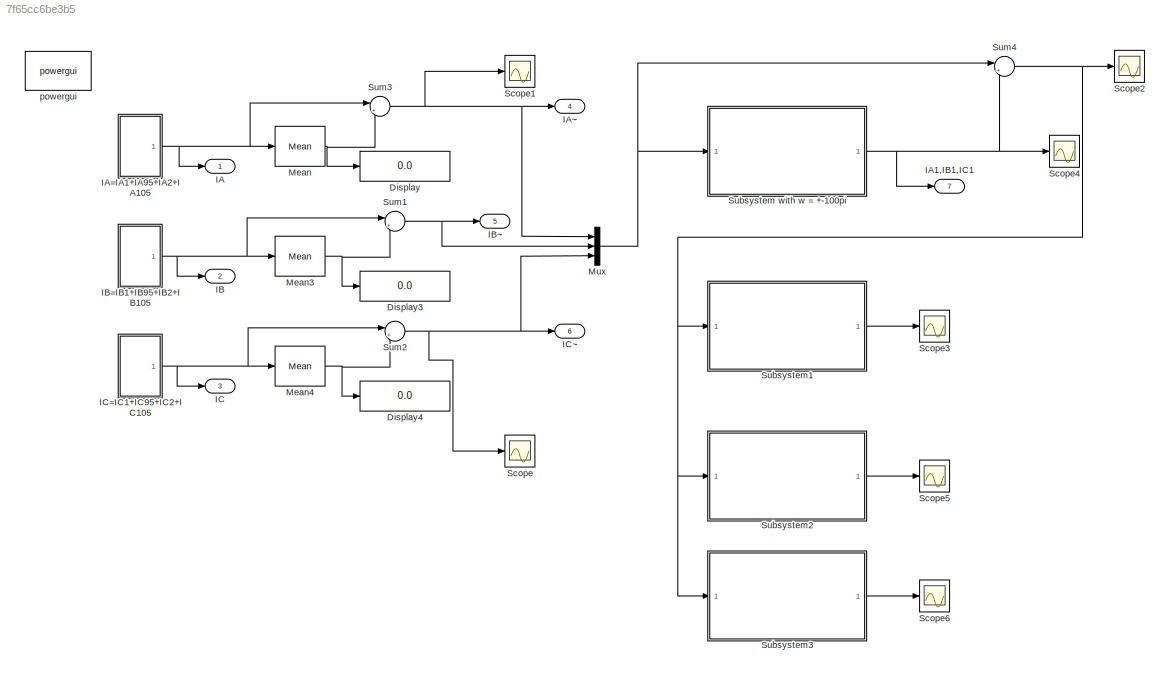
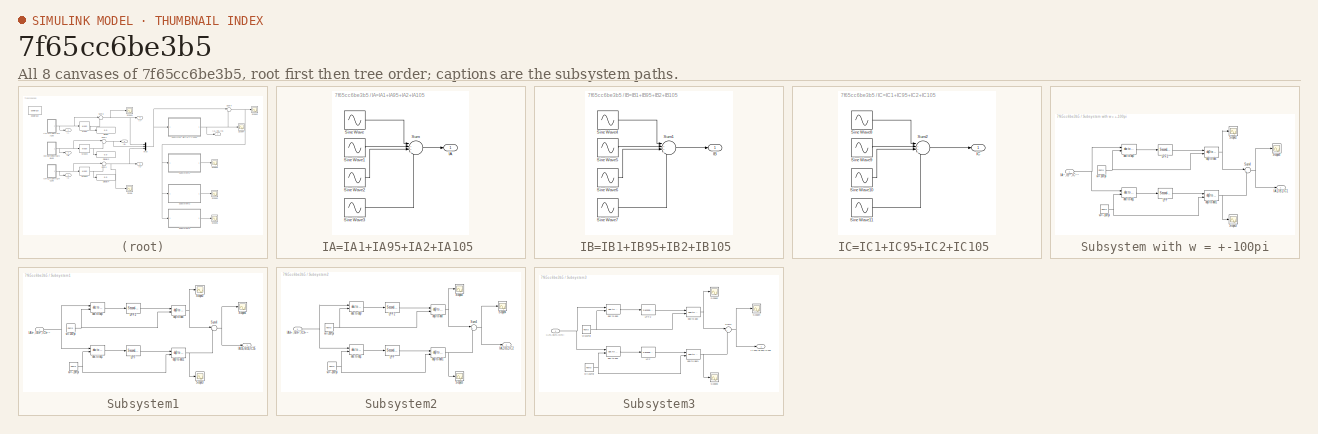
[diagram: thumbnail index - all 8 canvases of the model, root first then tree order]
MODEL slx_7f65cc6be3b5
KIND model
BLOCK [Display] Display
  Decimation = 1
  Lockdown = off
  Ports = [1]
BLOCK [Display] Display3
  Decimation = 1
  Lockdown = off
  Ports = [1]
BLOCK [Display] Display4
  Decimation = 1
  Lockdown = off
  Ports = [1]
BLOCK [Outport] IA
  IconDisplay = Port number
BLOCK [Outport] IA1,IB1,IC1
  IconDisplay = Port number
  Port = 7
BLOCK [SubSystem] IA=IA1+IA95+IA2+IA105 
  FunctionWithSeparateData = off
  MaskHideContents = off
  MinAlgLoopOccurrences = off
  Opaque = off
  Ports = [0, 1]
  PropExecContextOutsideSubsystem = off
  RTWSystemCode = Auto
  RequestExecContextInheritance = off
BLOCK [Outport] IA=IA1+IA95+IA2+IA105 /IA
  IconDisplay = Port number
BLOCK [Sin] IA=IA1+IA95+IA2+IA105 /Sine Wave
  Amplitude = 1750*sqrt(2)
  Frequency = 100*pi
  Ports = [0, 1]
  SampleTime = 0
  VectorParams1D = off
BLOCK [Sin] IA=IA1+IA95+IA2+IA105 /Sine Wave1
  Amplitude = 190*sqrt(2)
  Frequency = 190*pi
  Ports = [0, 1]
  SampleTime = 0
  VectorParams1D = off
BLOCK [Sin] IA=IA1+IA95+IA2+IA105 /Sine Wave2
  Amplitude = 154*sqrt(2)
  Frequency = 200*pi
  Ports = [0, 1]
  SampleTime = 0
  VectorParams1D = off
BLOCK [Sin] IA=IA1+IA95+IA2+IA105 /Sine Wave3
  Amplitude = 180*sqrt(2)
  Frequency = 210*pi
  Ports = [0, 1]
  SampleTime = 0
  VectorParams1D = off
BLOCK [Sum] IA=IA1+IA95+IA2+IA105 /Sum
  IconShape = round
  InputSameDT = off
  Inputs = |++++
  OutDataTypeStr = Inherit: Inherit via internal rule
  Ports = [4, 1]
  SaturateOnIntegerOverflow = off
BLOCK [Outport] IA~ 
  IconDisplay = Port number
  Port = 4
BLOCK [Outport] IB 
  IconDisplay = Port number
  Port = 2
BLOCK [SubSystem] IB=IB1+IB95+IB2+IB105 
  FunctionWithSeparateData = off
  MaskHideContents = off
  MinAlgLoopOccurrences = off
  Opaque = off
  Ports = [0, 1]
  PropExecContextOutsideSubsystem = off
  RTWSystemCode = Auto
  RequestExecContextInheritance = off
BLOCK [Outport] IB=IB1+IB95+IB2+IB105 /IB 
  IconDisplay = Port number
BLOCK [Sin] IB=IB1+IB95+IB2+IB105 /Sine Wave4
  Amplitude = 1261.9*sqrt(2)
  Frequency = 100*pi
  Phase = -0.7439*pi
  Ports = [0, 1]
  SampleTime = 0
  VectorParams1D = off
BLOCK [Sin] IB=IB1+IB95+IB2+IB105 /Sine Wave5
  Amplitude = 95.4*sqrt(2)
  Frequency = 190*pi
  Phase = -0.9711*pi
  Ports = [0, 1]
  SampleTime = 0
  VectorParams1D = off
BLOCK [Sin] IB=IB1+IB95+IB2+IB105 /Sine Wave6
  Amplitude = 77.95*sqrt(2)
  Frequency = 200*pi
  Phase = -0.9503*pi
  Ports = [0, 1]
  SampleTime = 0
  VectorParams1D = off
BLOCK [Sin] IB=IB1+IB95+IB2+IB105 /Sine Wave7
  Amplitude = 96.4*sqrt(2)
  Frequency = 210*pi
  Phase = -0.883*pi
  Ports = [0, 1]
  SampleTime = 0
  VectorParams1D = off
BLOCK [Sum] IB=IB1+IB95+IB2+IB105 /Sum1
  IconShape = round
  InputSameDT = off
  Inputs = |++++
  OutDataTypeStr = Inherit: Inherit via internal rule
  Ports = [4, 1]
  SaturateOnIntegerOverflow = off
BLOCK [Outport] IB~
  IconDisplay = Port number
  Port = 5
BLOCK [Outport] IC 
  IconDisplay = Port number
  Port = 3
BLOCK [SubSystem] IC=IC1+IC95+IC2+IC105 
  FunctionWithSeparateData = off
  MaskHideContents = off
  MinAlgLoopOccurrences = off
  Opaque = off
  Ports = [0, 1]
  PropExecContextOutsideSubsystem = off
  RTWSystemCode = Auto
  RequestExecContextInheritance = off
BLOCK [Outport] IC=IC1+IC95+IC2+IC105 /IC 
  IconDisplay = Port number
BLOCK [Sin] IC=IC1+IC95+IC2+IC105 /Sine Wave10
  Amplitude = 77.95*sqrt(2)
  Frequency = 200*pi
  Phase = 0.9503*pi
  Ports = [0, 1]
  SampleTime = 0
  VectorParams1D = off
BLOCK [Sin] IC=IC1+IC95+IC2+IC105 /Sine Wave11
  Amplitude = 96.4*sqrt(2)
  Frequency = 210*pi
  Phase = 0.883*pi
  Ports = [0, 1]
  SampleTime = 0
  VectorParams1D = off
BLOCK [Sin] IC=IC1+IC95+IC2+IC105 /Sine Wave8
  Amplitude = 1261.9*sqrt(2)
  Frequency = 100*pi
  Phase = 0.7439*pi
  Ports = [0, 1]
  SampleTime = 0
  VectorParams1D = off
BLOCK [Sin] IC=IC1+IC95+IC2+IC105 /Sine Wave9
  Amplitude = 95.4*sqrt(2)
  Frequency = 190*pi
  Phase = 0.9711*pi
  Ports = [0, 1]
  SampleTime = 0
  VectorParams1D = off
BLOCK [Sum] IC=IC1+IC95+IC2+IC105 /Sum2
  IconShape = round
  InputSameDT = off
  Inputs = |++++
  OutDataTypeStr = Inherit: Inherit via internal rule
  Ports = [4, 1]
  SaturateOnIntegerOverflow = off
BLOCK [Outport] IC~
  IconDisplay = Port number
  Port = 6
BLOCK [Reference] Mean  REF=powerlib_meascontrol/Measurements/Mean
  Freq = 50
  Ports = [1, 1]
  SourceBlock = powerlib_meascontrol/Measurements/Mean
  SourceType = Mean
  Ts = 0
  Vinit = 0
BLOCK [Reference] Mean3  REF=powerlib_meascontrol/Measurements/Mean
  Freq = 50
  Ports = [1, 1]
  SourceBlock = powerlib_meascontrol/Measurements/Mean
  SourceType = Mean
  Ts = 0
  Vinit = 0
BLOCK [Reference] Mean4  REF=powerlib_meascontrol/Measurements/Mean
  Freq = 50
  Ports = [1, 1]
  SourceBlock = powerlib_meascontrol/Measurements/Mean
  SourceType = Mean
  Ts = 0
  Vinit = 0
BLOCK [Mux] Mux
  DisplayOption = bar
  Inputs = 3
  Ports = [3, 1]
BLOCK [Scope] Scope
  DataFormat = StructureWithTime
  Floating = off
  LimitDataPoints = off
  NumInputPorts = 1
  Ports = [1]
  SampleTime = 0
  ShowLegends = off
  YMax = 3000
  YMin = -3000
  ZoomMode = xonly
BLOCK [Scope] Scope1
  DataFormat = StructureWithTime
  Floating = off
  LimitDataPoints = off
  NumInputPorts = 1
  Ports = [1]
  SampleTime = 0
  SaveName = ScopeData1
  ShowLegends = off
  ZoomMode = xonly
BLOCK [Scope] Scope2
  DataFormat = StructureWithTime
  Floating = off
  LimitDataPoints = off
  NumInputPorts = 1
  Ports = [1]
  SampleTime = 0
  SaveName = ScopeData5
  ShowLegends = off
  YMax = 3000
  YMin = -3000
  ZoomMode = xonly
BLOCK [Scope] Scope3
  DataFormat = StructureWithTime
  Floating = off
  LimitDataPoints = off
  NumInputPorts = 1
  Ports = [1]
  SampleTime = 0
  SaveName = ScopeData6
  ShowLegends = off
  YMax = 3000
  YMin = -3000
  ZoomMode = xonly
BLOCK [Scope] Scope4
  DataFormat = StructureWithTime
  Floating = off
  LimitDataPoints = off
  NumInputPorts = 1
  Ports = [1]
  SampleTime = 0
  SaveName = ScopeData7
  ShowLegends = off
  YMax = 3000
  YMin = -3000
  ZoomMode = xonly
BLOCK [Scope] Scope5
  DataFormat = StructureWithTime
  Floating = off
  LimitDataPoints = off
  NumInputPorts = 1
  Ports = [1]
  SampleTime = 0
  SaveName = ScopeData8
  ShowLegends = off
  YMax = 3000
  YMin = -3000
  ZoomMode = xonly
BLOCK [Scope] Scope6
  DataFormat = StructureWithTime
  Floating = off
  LimitDataPoints = off
  NumInputPorts = 1
  Ports = [1]
  SampleTime = 0
  SaveName = ScopeData9
  ShowLegends = off
  YMax = 3000
  YMin = -3000
  ZoomMode = xonly
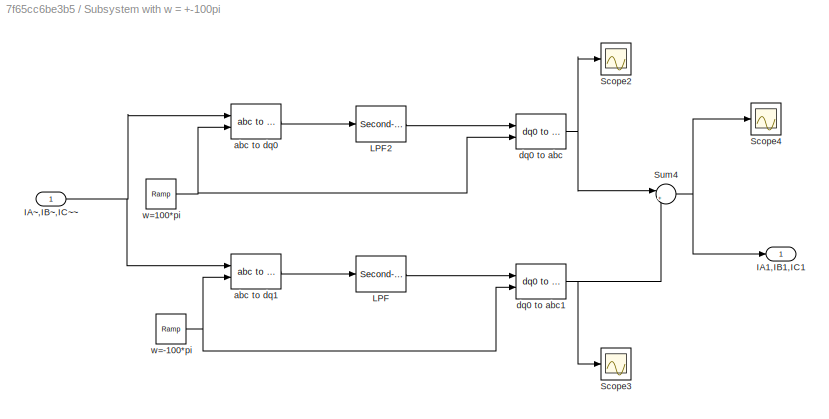
BLOCK [SubSystem] Subsystem with w = +-100pi
  FunctionWithSeparateData = off
  MaskHideContents = off
  MinAlgLoopOccurrences = off
  Opaque = off
  Ports = [1, 1]
  PropExecContextOutsideSubsystem = off
  RTWSystemCode = Auto
  RequestExecContextInheritance = off
BLOCK [Outport] Subsystem with w = +-100pi/IA1,IB1,IC1
  IconDisplay = Port number
BLOCK [Inport] Subsystem with w = +-100pi/IA~,IB~,IC~~
  IconDisplay = Port number
BLOCK [Reference] Subsystem with w = +-100pi/LPF  REF=powerlib_meascontrol/Filters/Second-Order
Filter
  FilterType = Lowpass
  Fo = 2.5
  FreqRange = [0, 500, 1]
  Initialize = on
  PlotResponse = off
  Ports = [1, 1]
  SourceBlock = powerlib_meascontrol/Filters/Second-Order\nFilter
  SourceType = Second-Order Filter
  Ts = 0
  Vac_Init = [0,  0,  60]
  Vdc_Init = 0
  Zeta = 0.707
BLOCK [Reference] Subsystem with w = +-100pi/LPF2   REF=powerlib_meascontrol/Filters/Second-Order
Filter
  FilterType = Lowpass
  Fo = 2.5
  FreqRange = [0, 500, 1]
  Initialize = on
  PlotResponse = off
  Ports = [1, 1]
  SourceBlock = powerlib_meascontrol/Filters/Second-Order\nFilter
  SourceType = Second-Order Filter
  Ts = 0
  Vac_Init = [0,  0,  60]
  Vdc_Init = 0
  Zeta = 0.707
BLOCK [Scope] Subsystem with w = +-100pi/Scope2
  DataFormat = StructureWithTime
  Floating = off
  LimitDataPoints = off
  NumInputPorts = 1
  Ports = [1]
  SampleTime = 0
  SaveName = ScopeData2
  ShowLegends = off
  YMax = 3000
  YMin = -3000
  ZoomMode = xonly
BLOCK [Scope] Subsystem with w = +-100pi/Scope3
  DataFormat = StructureWithTime
  Floating = off
  LimitDataPoints = off
  NumInputPorts = 1
  Ports = [1]
  SampleTime = 0
  SaveName = ScopeData3
  ShowLegends = off
  YMax = 3000
  YMin = -3000
  ZoomMode = xonly
BLOCK [Scope] Subsystem with w = +-100pi/Scope4
  DataFormat = StructureWithTime
  Floating = off
  LimitDataPoints = off
  NumInputPorts = 1
  Ports = [1]
  SampleTime = 0
  SaveName = ScopeData4
  ShowLegends = off
  YMax = 3000
  YMin = -3000
  ZoomMode = xonly
BLOCK [Sum] Subsystem with w = +-100pi/Sum4
  IconShape = round
  InputSameDT = off
  Inputs = |++
  OutDataTypeStr = Inherit: Inherit via internal rule
  Ports = [2, 1]
  SaturateOnIntegerOverflow = off
BLOCK [Reference] Subsystem with w = +-100pi/abc to dq0  REF=powerlib_meascontrol/Transformations/abc to dq0
  Alignment = 90 degrees behind phase A axis
  Ports = [2, 1]
  SourceBlock = powerlib_meascontrol/Transformations/abc to dq0
  SourceType = abc to dq0 Transformation
BLOCK [Reference] Subsystem with w = +-100pi/abc to dq1  REF=powerlib_meascontrol/Transformations/abc to dq0
  Alignment = 90 degrees behind phase A axis
  Ports = [2, 1]
  SourceBlock = powerlib_meascontrol/Transformations/abc to dq0
  SourceType = abc to dq0 Transformation
BLOCK [Reference] Subsystem with w = +-100pi/dq0 to abc  REF=powerlib_meascontrol/Transformations/dq0 to abc
  Alignment = 90 degrees behind phase A axis
  Ports = [2, 1]
  SourceBlock = powerlib_meascontrol/Transformations/dq0 to abc
  SourceType = dq0 to abc Transformation
BLOCK [Reference] Subsystem with w = +-100pi/dq0 to abc1  REF=powerlib_meascontrol/Transformations/dq0 to abc
  Alignment = 90 degrees behind phase A axis
  Ports = [2, 1]
  SourceBlock = powerlib_meascontrol/Transformations/dq0 to abc
  SourceType = dq0 to abc Transformation
BLOCK [Reference] Subsystem with w = +-100pi/w=-100*pi   REF=simulink/Sources/Ramp
  Ports = [0, 1]
  SourceBlock = simulink/Sources/Ramp
  SourceType = Ramp
  VectorParams1D = on
  X0 = 0
  slope = -100*pi
  start = 0
BLOCK [Reference] Subsystem with w = +-100pi/w=100*pi   REF=simulink/Sources/Ramp
  Ports = [0, 1]
  SourceBlock = simulink/Sources/Ramp
  SourceType = Ramp
  VectorParams1D = on
  X0 = 0
  slope = 100*pi
  start = 0
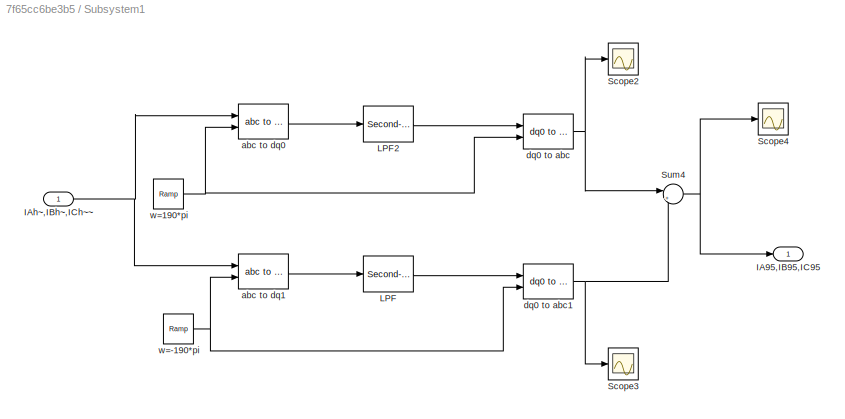
BLOCK [SubSystem] Subsystem1
  FunctionWithSeparateData = off
  MaskHideContents = off
  MinAlgLoopOccurrences = off
  Opaque = off
  Ports = [1, 1]
  PropExecContextOutsideSubsystem = off
  RTWSystemCode = Auto
  RequestExecContextInheritance = off
BLOCK [Outport] Subsystem1/IA95,IB95,IC95 
  IconDisplay = Port number
BLOCK [Inport] Subsystem1/IAh~,IBh~,ICh~~
  IconDisplay = Port number
BLOCK [Reference] Subsystem1/LPF  REF=powerlib_meascontrol/Filters/Second-Order
Filter
  FilterType = Lowpass
  Fo = 2.5
  FreqRange = [0, 500, 1]
  Initialize = on
  PlotResponse = off
  Ports = [1, 1]
  SourceBlock = powerlib_meascontrol/Filters/Second-Order\nFilter
  SourceType = Second-Order Filter
  Ts = 0
  Vac_Init = [0,  0,  60]
  Vdc_Init = 0
  Zeta = 0.707
BLOCK [Reference] Subsystem1/LPF2   REF=powerlib_meascontrol/Filters/Second-Order
Filter
  FilterType = Lowpass
  Fo = 2.5
  FreqRange = [0, 500, 1]
  Initialize = on
  PlotResponse = off
  Ports = [1, 1]
  SourceBlock = powerlib_meascontrol/Filters/Second-Order\nFilter
  SourceType = Second-Order Filter
  Ts = 0
  Vac_Init = [0,  0,  60]
  Vdc_Init = 0
  Zeta = 0.707
BLOCK [Scope] Subsystem1/Scope2
  DataFormat = StructureWithTime
  Floating = off
  LimitDataPoints = off
  NumInputPorts = 1
  Ports = [1]
  SampleTime = 0
  SaveName = ScopeData2
  ShowLegends = off
  YMax = 3000
  YMin = -3000
  ZoomMode = xonly
BLOCK [Scope] Subsystem1/Scope3
  DataFormat = StructureWithTime
  Floating = off
  LimitDataPoints = off
  NumInputPorts = 1
  Ports = [1]
  SampleTime = 0
  SaveName = ScopeData3
  ShowLegends = off
  YMax = 3000
  YMin = -3000
  ZoomMode = xonly
BLOCK [Scope] Subsystem1/Scope4
  DataFormat = StructureWithTime
  Floating = off
  LimitDataPoints = off
  NumInputPorts = 1
  Ports = [1]
  SampleTime = 0
  SaveName = ScopeData4
  ShowLegends = off
  YMax = 3000
  YMin = -3000
  ZoomMode = xonly
BLOCK [Sum] Subsystem1/Sum4
  IconShape = round
  InputSameDT = off
  Inputs = |++
  OutDataTypeStr = Inherit: Inherit via internal rule
  Ports = [2, 1]
  SaturateOnIntegerOverflow = off
BLOCK [Reference] Subsystem1/abc to dq0  REF=powerlib_meascontrol/Transformations/abc to dq0
  Alignment = 90 degrees behind phase A axis
  Ports = [2, 1]
  SourceBlock = powerlib_meascontrol/Transformations/abc to dq0
  SourceType = abc to dq0 Transformation
BLOCK [Reference] Subsystem1/abc to dq1  REF=powerlib_meascontrol/Transformations/abc to dq0
  Alignment = 90 degrees behind phase A axis
  Ports = [2, 1]
  SourceBlock = powerlib_meascontrol/Transformations/abc to dq0
  SourceType = abc to dq0 Transformation
BLOCK [Reference] Subsystem1/dq0 to abc  REF=powerlib_meascontrol/Transformations/dq0 to abc
  Alignment = 90 degrees behind phase A axis
  Ports = [2, 1]
  SourceBlock = powerlib_meascontrol/Transformations/dq0 to abc
  SourceType = dq0 to abc Transformation
BLOCK [Reference] Subsystem1/dq0 to abc1  REF=powerlib_meascontrol/Transformations/dq0 to abc
  Alignment = 90 degrees behind phase A axis
  Ports = [2, 1]
  SourceBlock = powerlib_meascontrol/Transformations/dq0 to abc
  SourceType = dq0 to abc Transformation
BLOCK [Reference] Subsystem1/w=-190*pi   REF=simulink/Sources/Ramp
  Ports = [0, 1]
  SourceBlock = simulink/Sources/Ramp
  SourceType = Ramp
  VectorParams1D = on
  X0 = 0
  slope = -190*pi
  start = 0
BLOCK [Reference] Subsystem1/w=190*pi   REF=simulink/Sources/Ramp
  Ports = [0, 1]
  SourceBlock = simulink/Sources/Ramp
  SourceType = Ramp
  VectorParams1D = on
  X0 = 0
  slope = 190*pi
  start = 0
BLOCK [SubSystem] Subsystem2
  FunctionWithSeparateData = off
  MaskHideContents = off
  MinAlgLoopOccurrences = off
  Opaque = off
  Ports = [1, 1]
  PropExecContextOutsideSubsystem = off
  RTWSystemCode = Auto
  RequestExecContextInheritance = off
BLOCK [Outport] Subsystem2/IA2,IB2,IC2 
  IconDisplay = Port number
BLOCK [Inport] Subsystem2/IAh~,IBh~,ICh~~
  IconDisplay = Port number
BLOCK [Reference] Subsystem2/LPF  REF=powerlib_meascontrol/Filters/Second-Order
Filter
  FilterType = Lowpass
  Fo = 2.5
  FreqRange = [0, 500, 1]
  Initialize = on
  PlotResponse = off
  Ports = [1, 1]
  SourceBlock = powerlib_meascontrol/Filters/Second-Order\nFilter
  SourceType = Second-Order Filter
  Ts = 0
  Vac_Init = [0,  0,  60]
  Vdc_Init = 0
  Zeta = 0.707
BLOCK [Reference] Subsystem2/LPF2   REF=powerlib_meascontrol/Filters/Second-Order
Filter
  FilterType = Lowpass
  Fo = 2.5
  FreqRange = [0, 500, 1]
  Initialize = on
  PlotResponse = off
  Ports = [1, 1]
  SourceBlock = powerlib_meascontrol/Filters/Second-Order\nFilter
  SourceType = Second-Order Filter
  Ts = 0
  Vac_Init = [0,  0,  60]
  Vdc_Init = 0
  Zeta = 0.707
BLOCK [Scope] Subsystem2/Scope2
  DataFormat = StructureWithTime
  Floating = off
  LimitDataPoints = off
  NumInputPorts = 1
  Ports = [1]
  SampleTime = 0
  SaveName = ScopeData2
  ShowLegends = off
  YMax = 3000
  YMin = -3000
  ZoomMode = xonly
BLOCK [Scope] Subsystem2/Scope3
  DataFormat = StructureWithTime
  Floating = off
  LimitDataPoints = off
  NumInputPorts = 1
  Ports = [1]
  SampleTime = 0
  SaveName = ScopeData3
  ShowLegends = off
  YMax = 3000
  YMin = -3000
  ZoomMode = xonly
BLOCK [Scope] Subsystem2/Scope4
  DataFormat = StructureWithTime
  Floating = off
  LimitDataPoints = off
  NumInputPorts = 1
  Ports = [1]
  SampleTime = 0
  SaveName = ScopeData4
  ShowLegends = off
  YMax = 3000
  YMin = -3000
  ZoomMode = xonly
BLOCK [Sum] Subsystem2/Sum4
  IconShape = round
  InputSameDT = off
  Inputs = |++
  OutDataTypeStr = Inherit: Inherit via internal rule
  Ports = [2, 1]
  SaturateOnIntegerOverflow = off
BLOCK [Reference] Subsystem2/abc to dq0  REF=powerlib_meascontrol/Transformations/abc to dq0
  Alignment = 90 degrees behind phase A axis
  Ports = [2, 1]
  SourceBlock = powerlib_meascontrol/Transformations/abc to dq0
  SourceType = abc to dq0 Transformation
BLOCK [Reference] Subsystem2/abc to dq1  REF=powerlib_meascontrol/Transformations/abc to dq0
  Alignment = 90 degrees behind phase A axis
  Ports = [2, 1]
  SourceBlock = powerlib_meascontrol/Transformations/abc to dq0
  SourceType = abc to dq0 Transformation
BLOCK [Reference] Subsystem2/dq0 to abc  REF=powerlib_meascontrol/Transformations/dq0 to abc
  Alignment = 90 degrees behind phase A axis
  Ports = [2, 1]
  SourceBlock = powerlib_meascontrol/Transformations/dq0 to abc
  SourceType = dq0 to abc Transformation
BLOCK [Reference] Subsystem2/dq0 to abc1  REF=powerlib_meascontrol/Transformations/dq0 to abc
  Alignment = 90 degrees behind phase A axis
  Ports = [2, 1]
  SourceBlock = powerlib_meascontrol/Transformations/dq0 to abc
  SourceType = dq0 to abc Transformation
BLOCK [Reference] Subsystem2/w=-200*pi   REF=simulink/Sources/Ramp
  Ports = [0, 1]
  SourceBlock = simulink/Sources/Ramp
  SourceType = Ramp
  VectorParams1D = on
  X0 = 0
  slope = -200*pi
  start = 0
BLOCK [Reference] Subsystem2/w=200*pi   REF=simulink/Sources/Ramp
  Ports = [0, 1]
  SourceBlock = simulink/Sources/Ramp
  SourceType = Ramp
  VectorParams1D = on
  X0 = 0
  slope = 200*pi
  start = 0
BLOCK [SubSystem] Subsystem3
  FunctionWithSeparateData = off
  MaskHideContents = off
  MinAlgLoopOccurrences = off
  Opaque = off
  Ports = [1, 1]
  PropExecContextOutsideSubsystem = off
  RTWSystemCode = Auto
  RequestExecContextInheritance = off
BLOCK [Outport] Subsystem3/IA105,IB105,IC105 
  IconDisplay = Port number
BLOCK [Inport] Subsystem3/IAh~,IBh~,ICh~~
  IconDisplay = Port number
BLOCK [Reference] Subsystem3/LPF  REF=powerlib_meascontrol/Filters/Second-Order
Filter
  FilterType = Lowpass
  Fo = 2.5
  FreqRange = [0, 500, 1]
  Initialize = on
  PlotResponse = off
  Ports = [1, 1]
  SourceBlock = powerlib_meascontrol/Filters/Second-Order\nFilter
  SourceType = Second-Order Filter
  Ts = 0
  Vac_Init = [0,  0,  60]
  Vdc_Init = 0
  Zeta = 0.707
BLOCK [Reference] Subsystem3/LPF2   REF=powerlib_meascontrol/Filters/Second-Order
Filter
  FilterType = Lowpass
  Fo = 2.5
  FreqRange = [0, 500, 1]
  Initialize = on
  PlotResponse = off
  Ports = [1, 1]
  SourceBlock = powerlib_meascontrol/Filters/Second-Order\nFilter
  SourceType = Second-Order Filter
  Ts = 0
  Vac_Init = [0,  0,  60]
  Vdc_Init = 0
  Zeta = 0.707
BLOCK [Scope] Subsystem3/Scope2
  DataFormat = StructureWithTime
  Floating = off
  LimitDataPoints = off
  NumInputPorts = 1
  Ports = [1]
  SampleTime = 0
  SaveName = ScopeData2
  ShowLegends = off
  YMax = 3000
  YMin = -3000
  ZoomMode = xonly
BLOCK [Scope] Subsystem3/Scope3
  DataFormat = StructureWithTime
  Floating = off
  LimitDataPoints = off
  NumInputPorts = 1
  Ports = [1]
  SampleTime = 0
  SaveName = ScopeData3
  ShowLegends = off
  YMax = 3000
  YMin = -3000
  ZoomMode = xonly
BLOCK [Scope] Subsystem3/Scope4
  DataFormat = StructureWithTime
  Floating = off
  LimitDataPoints = off
  NumInputPorts = 1
  Ports = [1]
  SampleTime = 0
  SaveName = ScopeData4
  ShowLegends = off
  YMax = 3000
  YMin = -3000
  ZoomMode = xonly
BLOCK [Sum] Subsystem3/Sum4
  IconShape = round
  InputSameDT = off
  Inputs = |++
  OutDataTypeStr = Inherit: Inherit via internal rule
  Ports = [2, 1]
  SaturateOnIntegerOverflow = off
BLOCK [Reference] Subsystem3/abc to dq0  REF=powerlib_meascontrol/Transformations/abc to dq0
  Alignment = 90 degrees behind phase A axis
  Ports = [2, 1]
  SourceBlock = powerlib_meascontrol/Transformations/abc to dq0
  SourceType = abc to dq0 Transformation
BLOCK [Reference] Subsystem3/abc to dq1  REF=powerlib_meascontrol/Transformations/abc to dq0
  Alignment = 90 degrees behind phase A axis
  Ports = [2, 1]
  SourceBlock = powerlib_meascontrol/Transformations/abc to dq0
  SourceType = abc to dq0 Transformation
BLOCK [Reference] Subsystem3/dq0 to abc  REF=powerlib_meascontrol/Transformations/dq0 to abc
  Alignment = 90 degrees behind phase A axis
  Ports = [2, 1]
  SourceBlock = powerlib_meascontrol/Transformations/dq0 to abc
  SourceType = dq0 to abc Transformation
BLOCK [Reference] Subsystem3/dq0 to abc1  REF=powerlib_meascontrol/Transformations/dq0 to abc
  Alignment = 90 degrees behind phase A axis
  Ports = [2, 1]
  SourceBlock = powerlib_meascontrol/Transformations/dq0 to abc
  SourceType = dq0 to abc Transformation
BLOCK [Reference] Subsystem3/w=-210*pi   REF=simulink/Sources/Ramp
  Ports = [0, 1]
  SourceBlock = simulink/Sources/Ramp
  SourceType = Ramp
  VectorParams1D = on
  X0 = 0
  slope = -210*pi
  start = 0
BLOCK [Reference] Subsystem3/w=210*pi   REF=simulink/Sources/Ramp
  Ports = [0, 1]
  SourceBlock = simulink/Sources/Ramp
  SourceType = Ramp
  VectorParams1D = on
  X0 = 0
  slope = 210*pi
  start = 0
BLOCK [Sum] Sum1
  IconShape = round
  InputSameDT = off
  Inputs = |+-
  OutDataTypeStr = Inherit: Inherit via internal rule
  Ports = [2, 1]
  SaturateOnIntegerOverflow = off
BLOCK [Sum] Sum2
  IconShape = round
  InputSameDT = off
  Inputs = |+-
  OutDataTypeStr = Inherit: Inherit via internal rule
  Ports = [2, 1]
  SaturateOnIntegerOverflow = off
BLOCK [Sum] Sum3
  IconShape = round
  InputSameDT = off
  Inputs = |+-
  OutDataTypeStr = Inherit: Inherit via internal rule
  Ports = [2, 1]
  SaturateOnIntegerOverflow = off
BLOCK [Sum] Sum4
  IconShape = round
  InputSameDT = off
  Inputs = |+-
  OutDataTypeStr = Inherit: Inherit via internal rule
  Ports = [2, 1]
  SaturateOnIntegerOverflow = off
BLOCK [Reference] powergui  REF=powerlib/powergui
  DisableRonSwitches = off
  DisableSnubberDevices = off
  DisableVfSwitches = off
  DisplayEquations = off
  DisplayStyle = 1
  EnableUseOfTLC = off
  ErrMax = 1e-4
  Frange = [0:2:500]
  FreqAxis = off
  FunctionMessages = off
  HookPort = off
  Interpol = off
  Iterations = 50
  MaxFrequency = 1000
  Pbase = 100e6
  Ports = []
  Priority = 1
  ResistiveCurrentMeasurement = off
  RestoreLinks = warning
  RmsSteady = 1
  SPID = off
  SampleTime = 50e-6
  ShowGrid = off
  SolverType = Tustin
  SourceBlock = powerlib/powergui
  SourceType = PSB option menu block
  StartTime = 0.0
  SwTol = 0
  Ts = 0
  UnitsV = kV
  UnitsW = MW
  UserDataPersistent = on
  Xlog = on
  Ylog = off
  ZoomFFT = off
  cycles = 1
  display = off
  echomessages = off
  frequency = 60
  frequencyindice = 50
  frequencyindicesteady = 1
  fundamental = 60
  methode = off
  save = off
  variable = ZData
  x0status = blocks
LINE IA=IA1+IA95+IA2+IA105 /Sine Wave1:1 -> IA=IA1+IA95+IA2+IA105 /Sum:2
LINE IA=IA1+IA95+IA2+IA105 /Sine Wave2:1 -> IA=IA1+IA95+IA2+IA105 /Sum:3
LINE IA=IA1+IA95+IA2+IA105 /Sine Wave3:1 -> IA=IA1+IA95+IA2+IA105 /Sum:4
LINE IA=IA1+IA95+IA2+IA105 /Sine Wave:1 -> IA=IA1+IA95+IA2+IA105 /Sum:1
LINE IA=IA1+IA95+IA2+IA105 /Sum:1 -> IA=IA1+IA95+IA2+IA105 /IA:1
NET IA=IA1+IA95+IA2+IA105 :1 -> IA:1, Mean:1, Sum3:1
LINE IB=IB1+IB95+IB2+IB105 /Sine Wave4:1 -> IB=IB1+IB95+IB2+IB105 /Sum1:1
LINE IB=IB1+IB95+IB2+IB105 /Sine Wave5:1 -> IB=IB1+IB95+IB2+IB105 /Sum1:2
LINE IB=IB1+IB95+IB2+IB105 /Sine Wave6:1 -> IB=IB1+IB95+IB2+IB105 /Sum1:3
LINE IB=IB1+IB95+IB2+IB105 /Sine Wave7:1 -> IB=IB1+IB95+IB2+IB105 /Sum1:4
LINE IB=IB1+IB95+IB2+IB105 /Sum1:1 -> IB=IB1+IB95+IB2+IB105 /IB :1
NET IB=IB1+IB95+IB2+IB105 :1 -> IB :1, Mean3:1, Sum1:1
LINE IC=IC1+IC95+IC2+IC105 /Sine Wave10:1 -> IC=IC1+IC95+IC2+IC105 /Sum2:3
LINE IC=IC1+IC95+IC2+IC105 /Sine Wave11:1 -> IC=IC1+IC95+IC2+IC105 /Sum2:4
LINE IC=IC1+IC95+IC2+IC105 /Sine Wave8:1 -> IC=IC1+IC95+IC2+IC105 /Sum2:1
LINE IC=IC1+IC95+IC2+IC105 /Sine Wave9:1 -> IC=IC1+IC95+IC2+IC105 /Sum2:2
LINE IC=IC1+IC95+IC2+IC105 /Sum2:1 -> IC=IC1+IC95+IC2+IC105 /IC :1
NET IC=IC1+IC95+IC2+IC105 :1 -> IC :1, Mean4:1, Sum2:1
NET Mean3:1 -> Display3:1, Sum1:2
NET Mean4:1 -> Display4:1, Sum2:2
NET Mean:1 -> Display:1, Sum3:2
NET Mux:1 -> Subsystem with w = +-100pi:1, Sum4:1
NET Subsystem with w = +-100pi/IA~,IB~,IC~~:1 -> Subsystem with w = +-100pi/abc to dq0:1, Subsystem with w = +-100pi/abc to dq1:1
LINE Subsystem with w = +-100pi/LPF2 :1 -> Subsystem with w = +-100pi/dq0 to abc:1
LINE Subsystem with w = +-100pi/LPF:1 -> Subsystem with w = +-100pi/dq0 to abc1:1
NET Subsystem with w = +-100pi/Sum4:1 -> Subsystem with w = +-100pi/IA1,IB1,IC1:1, Subsystem with w = +-100pi/Scope4:1
LINE Subsystem with w = +-100pi/abc to dq0:1 -> Subsystem with w = +-100pi/LPF2 :1
LINE Subsystem with w = +-100pi/abc to dq1:1 -> Subsystem with w = +-100pi/LPF:1
NET Subsystem with w = +-100pi/dq0 to abc1:1 -> Subsystem with w = +-100pi/Scope3:1, Subsystem with w = +-100pi/Sum4:2
NET Subsystem with w = +-100pi/dq0 to abc:1 -> Subsystem with w = +-100pi/Scope2:1, Subsystem with w = +-100pi/Sum4:1
NET Subsystem with w = +-100pi/w=-100*pi :1 -> Subsystem with w = +-100pi/abc to dq1:2, Subsystem with w = +-100pi/dq0 to abc1:2
NET Subsystem with w = +-100pi/w=100*pi :1 -> Subsystem with w = +-100pi/abc to dq0:2, Subsystem with w = +-100pi/dq0 to abc:2
NET Subsystem with w = +-100pi:1 -> IA1,IB1,IC1:1, Scope4:1, Sum4:2
NET Subsystem1/IAh~,IBh~,ICh~~:1 -> Subsystem1/abc to dq0:1, Subsystem1/abc to dq1:1
LINE Subsystem1/LPF2 :1 -> Subsystem1/dq0 to abc:1
LINE Subsystem1/LPF:1 -> Subsystem1/dq0 to abc1:1
NET Subsystem1/Sum4:1 -> Subsystem1/IA95,IB95,IC95 :1, Subsystem1/Scope4:1
LINE Subsystem1/abc to dq0:1 -> Subsystem1/LPF2 :1
LINE Subsystem1/abc to dq1:1 -> Subsystem1/LPF:1
NET Subsystem1/dq0 to abc1:1 -> Subsystem1/Scope3:1, Subsystem1/Sum4:2
NET Subsystem1/dq0 to abc:1 -> Subsystem1/Scope2:1, Subsystem1/Sum4:1
NET Subsystem1/w=-190*pi :1 -> Subsystem1/abc to dq1:2, Subsystem1/dq0 to abc1:2
NET Subsystem1/w=190*pi :1 -> Subsystem1/abc to dq0:2, Subsystem1/dq0 to abc:2
LINE Subsystem1:1 -> Scope3:1
NET Subsystem2/IAh~,IBh~,ICh~~:1 -> Subsystem2/abc to dq0:1, Subsystem2/abc to dq1:1
LINE Subsystem2/LPF2 :1 -> Subsystem2/dq0 to abc:1
LINE Subsystem2/LPF:1 -> Subsystem2/dq0 to abc1:1
NET Subsystem2/Sum4:1 -> Subsystem2/IA2,IB2,IC2 :1, Subsystem2/Scope4:1
LINE Subsystem2/abc to dq0:1 -> Subsystem2/LPF2 :1
LINE Subsystem2/abc to dq1:1 -> Subsystem2/LPF:1
NET Subsystem2/dq0 to abc1:1 -> Subsystem2/Scope3:1, Subsystem2/Sum4:2
NET Subsystem2/dq0 to abc:1 -> Subsystem2/Scope2:1, Subsystem2/Sum4:1
NET Subsystem2/w=-200*pi :1 -> Subsystem2/abc to dq1:2, Subsystem2/dq0 to abc1:2
NET Subsystem2/w=200*pi :1 -> Subsystem2/abc to dq0:2, Subsystem2/dq0 to abc:2
LINE Subsystem2:1 -> Scope5:1
NET Subsystem3/IAh~,IBh~,ICh~~:1 -> Subsystem3/abc to dq0:1, Subsystem3/abc to dq1:1
LINE Subsystem3/LPF2 :1 -> Subsystem3/dq0 to abc:1
LINE Subsystem3/LPF:1 -> Subsystem3/dq0 to abc1:1
NET Subsystem3/Sum4:1 -> Subsystem3/IA105,IB105,IC105 :1, Subsystem3/Scope4:1
LINE Subsystem3/abc to dq0:1 -> Subsystem3/LPF2 :1
LINE Subsystem3/abc to dq1:1 -> Subsystem3/LPF:1
NET Subsystem3/dq0 to abc1:1 -> Subsystem3/Scope3:1, Subsystem3/Sum4:2
NET Subsystem3/dq0 to abc:1 -> Subsystem3/Scope2:1, Subsystem3/Sum4:1
NET Subsystem3/w=-210*pi :1 -> Subsystem3/abc to dq1:2, Subsystem3/dq0 to abc1:2
NET Subsystem3/w=210*pi :1 -> Subsystem3/abc to dq0:2, Subsystem3/dq0 to abc:2
LINE Subsystem3:1 -> Scope6:1
NET Sum1:1 -> IB~:1, Mux:2
NET Sum2:1 -> IC~:1, Mux:3, Scope:1
NET Sum3:1 -> IA~ :1, Mux:1, Scope1:1
NET Sum4:1 -> Scope2:1, Subsystem1:1, Subsystem2:1, Subsystem3:1
note: NET lines group one-source signal fan-out (src -> all destinations, sorted); 1:1 wires keep LINE
